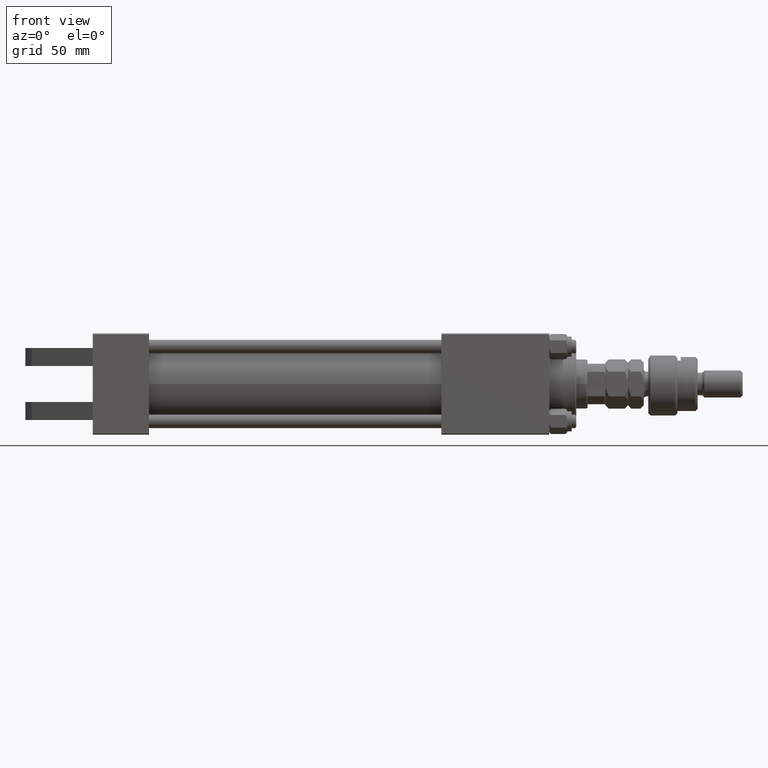
[diagram: clean part render]
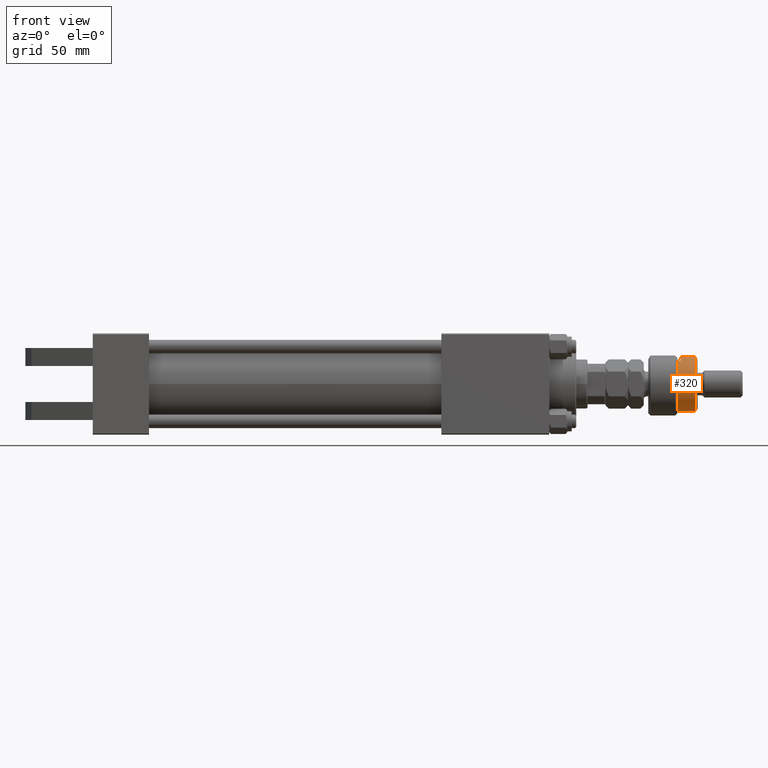
[diagram: same view with one face highlighted and labeled with its STEP entity id]
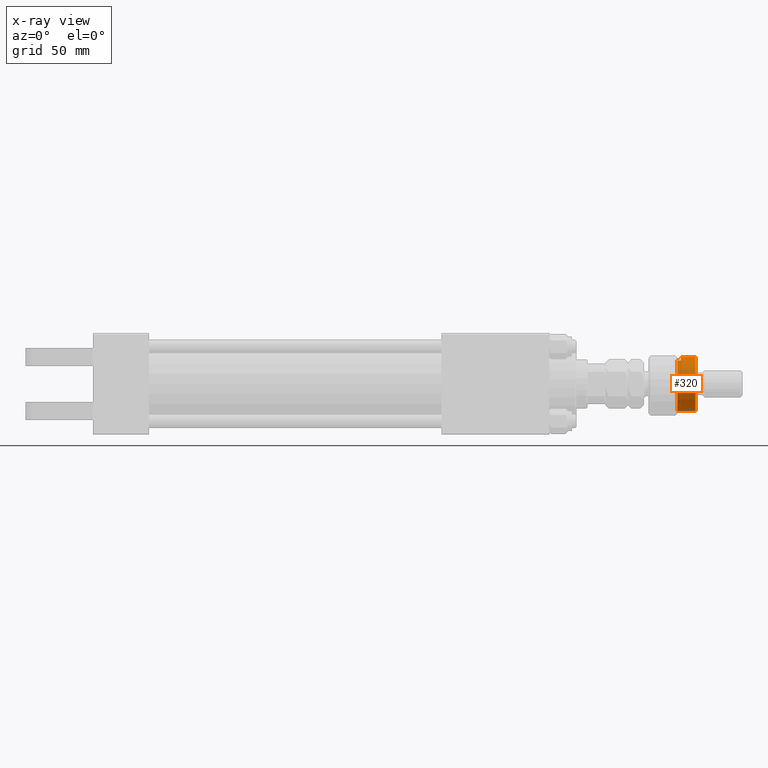
[diagram: x-ray of the same camera — body ghosted, the highlighted face saturated]
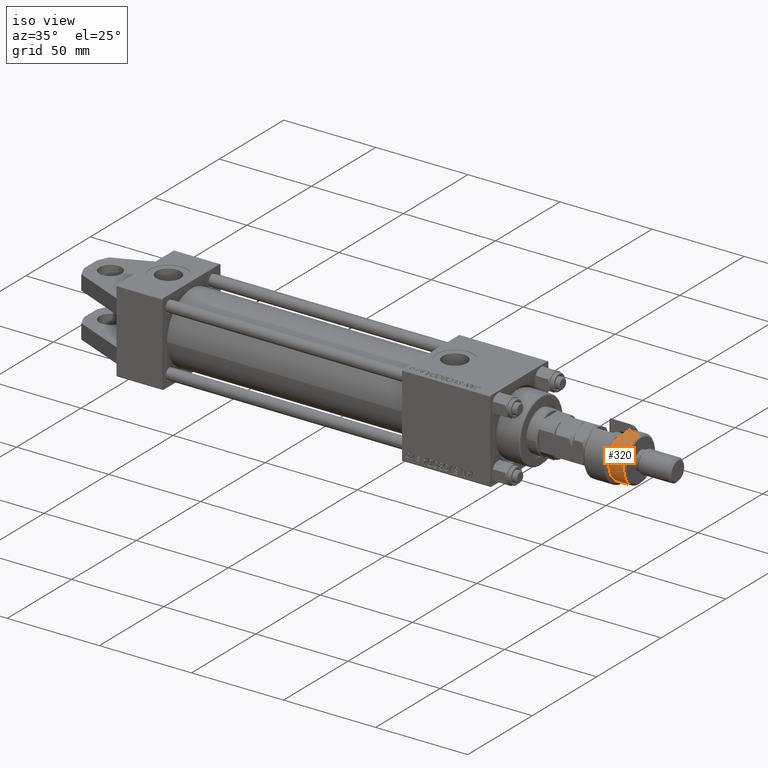
[diagram: same view with one face highlighted and labeled with its STEP entity id]
A machine part, front view. The second image highlights one B-rep face of the part: STEP entity #320.
The next image is the same camera in x-ray: the body ghosted, the highlighted face saturated — about 0% of this face is hidden behind the body in this view.
A second angle (iso view) of the same face is appended — the face is thin or edge-on in the first view.
In plain terms, the highlighted cylindrical surface (edge-blend (fillet) strip) has radius 12 mm, axis along (-1, -0, 0).
Its self-contained STEP definition (entity closure, byte-faithful):
#320 = ADVANCED_FACE ( 'NONE', ( #30596 ), #40069, .T. ) ;
#1058 = CARTESIAN_POINT ( 'NONE',  ( -12.00000000000000178, 0.000000000000000000, 20.99999999999998224 ) ) ;
#2659 = CARTESIAN_POINT ( 'NONE',  ( 0.000000000000000000, 0.000000000000000000, 13.00000000000000000 ) ) ;
#3904 = EDGE_CURVE ( 'NONE', #19236, #40020, #35338, .T. ) ;
#3915 = AXIS2_PLACEMENT_3D ( 'NONE', #46372, #18744, #18480 ) ;
#4394 = ORIENTED_EDGE ( 'NONE', *, *, #41312, .T. ) ;
#5446 = CARTESIAN_POINT ( 'NONE',  ( -10.39230484541326582, -5.999999999999998224, 14.50000000000000000 ) ) ;
#6832 = ORIENTED_EDGE ( 'NONE', *, *, #19971, .F. ) ;
#6900 = DIRECTION ( 'NONE',  ( 1.000000000000000000, 0.000000000000000000, 0.000000000000000000 ) ) ;
#7495 = DIRECTION ( 'NONE',  ( 0.000000000000000000, 0.000000000000000000, -1.000000000000000000 ) ) ;
#8415 = EDGE_CURVE ( 'NONE', #19236, #34748, #9155, .T. ) ;
#8730 = CIRCLE ( 'NONE', #22308, 12.00000000000000178 ) ;
#9155 = LINE ( 'NONE', #14202, #49861 ) ;
#9423 = DIRECTION ( 'NONE',  ( -0.000000000000000000, -0.000000000000000000, -1.000000000000000000 ) ) ;
#11654 = CARTESIAN_POINT ( 'NONE',  ( 0.000000000000000000, 0.000000000000000000, 22.00000000000000000 ) ) ;
#12793 = CARTESIAN_POINT ( 'NONE',  ( -12.00000000000000178, 0.000000000000000000, 22.00000000000000000 ) ) ;
#13952 = AXIS2_PLACEMENT_3D ( 'NONE', #11654, #38834, #38305 ) ;
#14202 = CARTESIAN_POINT ( 'NONE',  ( 12.00000000000000178, 1.469576158976824144E-15, 22.00000000000000000 ) ) ;
#16631 = CARTESIAN_POINT ( 'NONE',  ( 12.00000000000000178, 1.469576158976824144E-15, 13.00000000000000000 ) ) ;
#18188 = LINE ( 'NONE', #46876, #42723 ) ;
#18480 = DIRECTION ( 'NONE',  ( 1.000000000000000000, 0.000000000000000000, 0.000000000000000000 ) ) ;
#18744 = DIRECTION ( 'NONE',  ( 0.000000000000000000, 0.000000000000000000, -1.000000000000000000 ) ) ;
#19236 = VERTEX_POINT ( 'NONE', #25904 ) ;
#19443 = DIRECTION ( 'NONE',  ( -1.000000000000000000, 0.000000000000000000, 0.000000000000000000 ) ) ;
#19971 = EDGE_CURVE ( 'NONE', #42066, #50003, #25193, .T. ) ;
#22308 = AXIS2_PLACEMENT_3D ( 'NONE', #2659, #22838, #6900 ) ;
#22838 = DIRECTION ( 'NONE',  ( 0.000000000000000000, 0.000000000000000000, 1.000000000000000000 ) ) ;
#25193 = CIRCLE ( 'NONE', #44711, 12.00000000000000178 ) ;
#25904 = CARTESIAN_POINT ( 'NONE',  ( 12.00000000000000178, 1.469576158976824144E-15, 20.99999999999998224 ) ) ;
#26756 = VECTOR ( 'NONE', #29516, 1000.000000000000000 ) ;
#26815 = ORIENTED_EDGE ( 'NONE', *, *, #42051, .T. ) ;
#27642 = VERTEX_POINT ( 'NONE', #39022 ) ;
#28737 = LINE ( 'NONE', #12793, #26756 ) ;
#29516 = DIRECTION ( 'NONE',  ( -0.000000000000000000, -0.000000000000000000, -1.000000000000000000 ) ) ;
#30204 = ORIENTED_EDGE ( 'NONE', *, *, #8415, .F. ) ;
#30596 = FACE_OUTER_BOUND ( 'NONE', #46248, .T. ) ;
#32188 = CARTESIAN_POINT ( 'NONE',  ( 0.000000000000000000, 0.000000000000000000, 14.50000000000000000 ) ) ;
#34748 = VERTEX_POINT ( 'NONE', #16631 ) ;
#35338 = CIRCLE ( 'NONE', #3915, 12.00000000000000178 ) ;
#36541 = CARTESIAN_POINT ( 'NONE',  ( -12.00000000000000178, 0.000000000000000000, 14.50000000000000000 ) ) ;
#36803 = ORIENTED_EDGE ( 'NONE', *, *, #50435, .T. ) ;
#38305 = DIRECTION ( 'NONE',  ( -1.000000000000000000, 0.000000000000000000, 0.000000000000000000 ) ) ;
#38834 = DIRECTION ( 'NONE',  ( -0.000000000000000000, -0.000000000000000000, -1.000000000000000000 ) ) ;
#39022 = CARTESIAN_POINT ( 'NONE',  ( -10.39230484541326760, -6.000000000000000000, 13.00000000000000000 ) ) ;
#40020 = VERTEX_POINT ( 'NONE', #1058 ) ;
#40069 = CYLINDRICAL_SURFACE ( 'NONE', #13952, 12.00000000000000178 ) ;
#40751 = ORIENTED_EDGE ( 'NONE', *, *, #3904, .T. ) ;
#41312 = EDGE_CURVE ( 'NONE', #27642, #34748, #8730, .T. ) ;
#41560 = DIRECTION ( 'NONE',  ( -0.000000000000000000, -0.000000000000000000, -1.000000000000000000 ) ) ;
#42051 = EDGE_CURVE ( 'NONE', #42066, #27642, #18188, .T. ) ;
#42066 = VERTEX_POINT ( 'NONE', #5446 ) ;
#42723 = VECTOR ( 'NONE', #9423, 1000.000000000000000 ) ;
#44711 = AXIS2_PLACEMENT_3D ( 'NONE', #32188, #7495, #19443 ) ;
#46248 = EDGE_LOOP ( 'NONE', ( #30204, #40751, #36803, #6832, #26815, #4394 ) ) ;
#46372 = CARTESIAN_POINT ( 'NONE',  ( 0.000000000000000000, 0.000000000000000000, 20.99999999999998224 ) ) ;
#46876 = CARTESIAN_POINT ( 'NONE',  ( -10.39230484541326760, -6.000000000000000000, 22.00000000000000000 ) ) ;
#49861 = VECTOR ( 'NONE', #41560, 1000.000000000000000 ) ;
#50003 = VERTEX_POINT ( 'NONE', #36541 ) ;
#50435 = EDGE_CURVE ( 'NONE', #40020, #50003, #28737, .T. ) ;